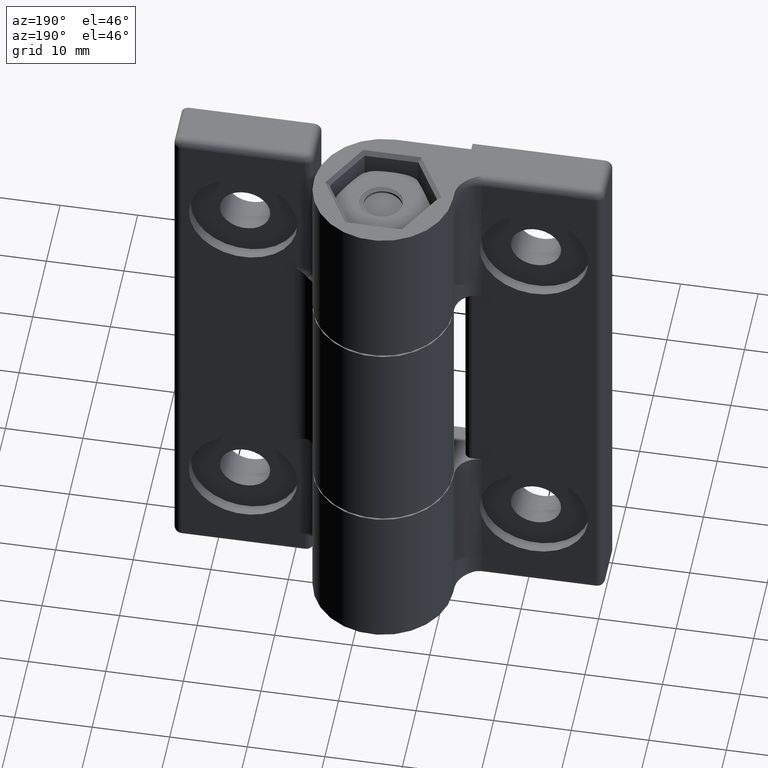
[diagram: clean part render]
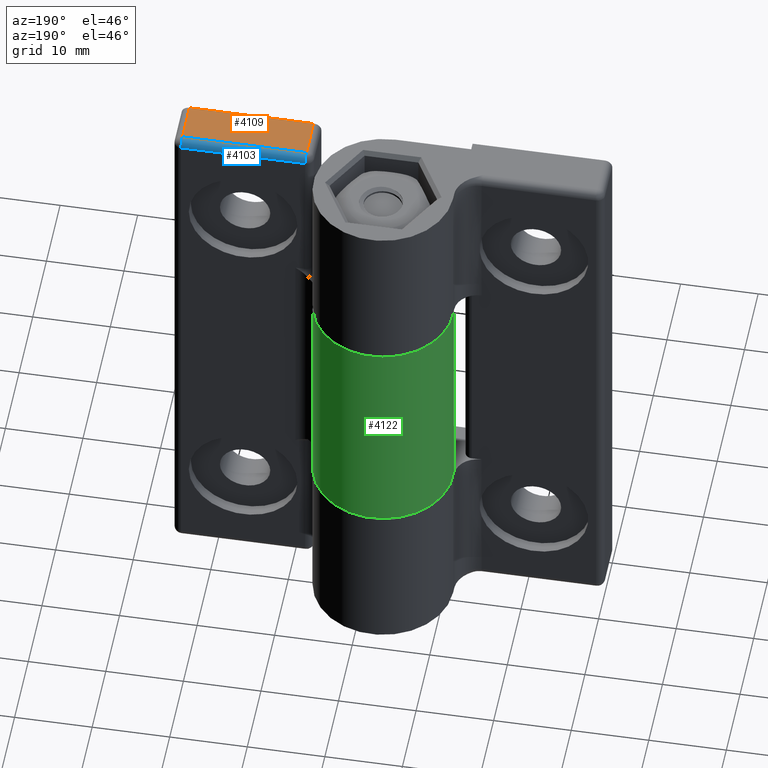
[diagram: same view with three faces highlighted in distinct colors, each labeled with its STEP entity id]
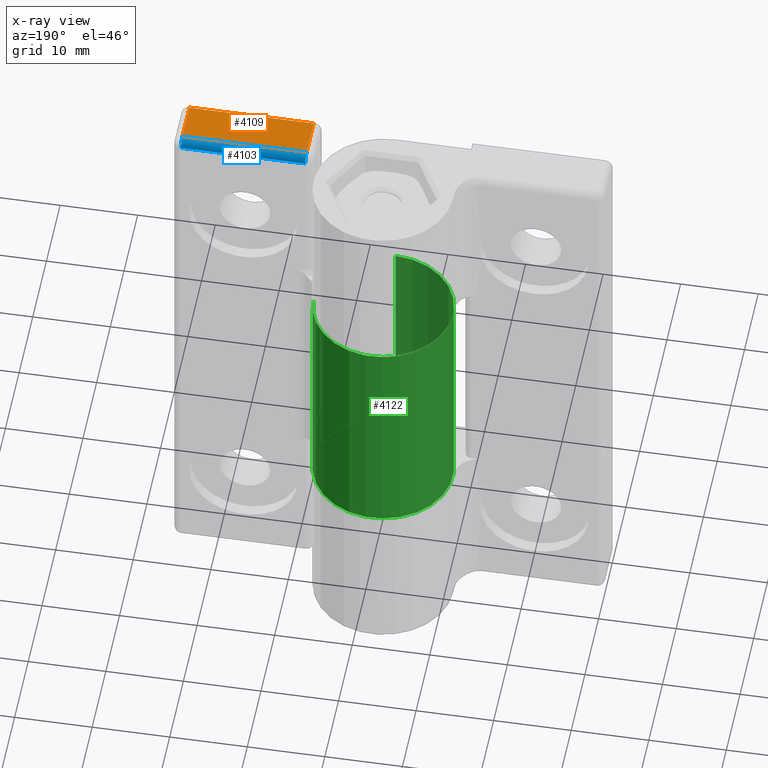
[diagram: x-ray of the same camera — body ghosted, the three highlighted faces saturated]
A machine part, auxiliary view with three faces highlighted in distinct colors.
The next image is the same camera in x-ray (body ghosted, the three faces saturated) — at least one of them is partly hidden behind the body in this view.
Their STEP definitions:

[orange] entity #4109 — the highlighted planar face has unit normal (0, -0, 1).
#511=PLANE('',#4366);
#675=FACE_OUTER_BOUND('',#880,.T.);
#880=EDGE_LOOP('',(#3721,#3722,#3723,#3724));
#1120=LINE('',#37165,#1385);
#1132=LINE('',#37231,#1397);
#1135=LINE('',#37238,#1400);
#1140=LINE('',#37268,#1405);
#1385=VECTOR('',#4967,5.2);
#1397=VECTOR('',#5027,16.);
#1400=VECTOR('',#5034,5.2);
#1405=VECTOR('',#5055,16.);
#1969=VERTEX_POINT('',#37158);
#1971=VERTEX_POINT('',#37163);
#1983=VERTEX_POINT('',#37206);
#1990=VERTEX_POINT('',#37234);
#2548=EDGE_CURVE('',#1971,#1969,#1120,.T.);
#2576=EDGE_CURVE('',#1969,#1983,#1132,.T.);
#2580=EDGE_CURVE('',#1983,#1990,#1135,.T.);
#2590=EDGE_CURVE('',#1971,#1990,#1140,.T.);
#3721=ORIENTED_EDGE('',*,*,#2580,.F.);
#3722=ORIENTED_EDGE('',*,*,#2576,.F.);
#3723=ORIENTED_EDGE('',*,*,#2548,.F.);
#3724=ORIENTED_EDGE('',*,*,#2590,.T.);
#4109=ADVANCED_FACE('',(#675),#511,.T.);
#4366=AXIS2_PLACEMENT_3D('',#37267,#5053,#5054);
#4967=DIRECTION('',(0.,0.,1.));
#5027=DIRECTION('',(-1.,0.,0.));
#5034=DIRECTION('',(0.,0.,-1.));
#5053=DIRECTION('center_axis',(0.,1.,0.));
#5054=DIRECTION('ref_axis',(1.,0.,0.));
#5055=DIRECTION('',(-1.,0.,6.84775091337684E-33));
#37158=CARTESIAN_POINT('',(68.2766159227696,36.,5.2));
#37163=CARTESIAN_POINT('',(68.2766159227696,36.,-1.16411765527406E-31));
#37165=CARTESIAN_POINT('',(68.2766159227696,36.,5.25));
#37206=CARTESIAN_POINT('',(52.2766159227696,36.,5.2));
#37231=CARTESIAN_POINT('',(60.4641159227696,36.,5.2));
#37234=CARTESIAN_POINT('',(52.2766159227696,36.,-6.84775091337681E-33));
#37238=CARTESIAN_POINT('',(52.2766159227696,36.,4.75));
#37267=CARTESIAN_POINT('Origin',(69.6516159227696,36.,9.5));
#37268=CARTESIAN_POINT('',(51.2766159227696,36.,0.));

[blue] entity #4103 — the highlighted cylindrical surface (edge-blend (fillet) strip) has radius 1 mm, axis along (-1, -0, 0).
#669=FACE_OUTER_BOUND('',#874,.T.);
#874=EDGE_LOOP('',(#3696,#3697,#3698,#3699));
#1132=LINE('',#37231,#1397);
#1133=LINE('',#37232,#1398);
#1397=VECTOR('',#5027,16.);
#1398=VECTOR('',#5028,16.);
#1530=CIRCLE('',#4330,1.);
#1541=CIRCLE('',#4347,1.);
#1968=VERTEX_POINT('',#37156);
#1969=VERTEX_POINT('',#37158);
#1983=VERTEX_POINT('',#37206);
#1984=VERTEX_POINT('',#37208);
#2546=EDGE_CURVE('',#1968,#1969,#1530,.F.);
#2565=EDGE_CURVE('',#1983,#1984,#1541,.F.);
#2576=EDGE_CURVE('',#1969,#1983,#1132,.T.);
#2577=EDGE_CURVE('',#1984,#1968,#1133,.T.);
#3696=ORIENTED_EDGE('',*,*,#2546,.T.);
#3697=ORIENTED_EDGE('',*,*,#2576,.T.);
#3698=ORIENTED_EDGE('',*,*,#2565,.T.);
#3699=ORIENTED_EDGE('',*,*,#2577,.T.);
#3960=CYLINDRICAL_SURFACE('',#4356,1.);
#4103=ADVANCED_FACE('',(#669),#3960,.T.);
#4330=AXIS2_PLACEMENT_3D('',#37160,#4961,#4962);
#4347=AXIS2_PLACEMENT_3D('',#37210,#5001,#5002);
#4356=AXIS2_PLACEMENT_3D('',#37230,#5025,#5026);
#4961=DIRECTION('center_axis',(1.,-8.88178419700124E-15,0.));
#4962=DIRECTION('ref_axis',(0.,0.,1.));
#5001=DIRECTION('center_axis',(-1.,0.,0.));
#5002=DIRECTION('ref_axis',(0.,1.,0.));
#5025=DIRECTION('center_axis',(1.,0.,0.));
#5026=DIRECTION('ref_axis',(0.,0.707106781186547,0.707106781186548));
#5027=DIRECTION('',(-1.,0.,0.));
#5028=DIRECTION('',(1.,0.,0.));
#37156=CARTESIAN_POINT('',(68.2766159227696,35.,6.2));
#37158=CARTESIAN_POINT('',(68.2766159227696,36.,5.2));
#37160=CARTESIAN_POINT('Origin',(68.2766159227696,35.,5.2));
#37206=CARTESIAN_POINT('',(52.2766159227696,36.,5.2));
#37208=CARTESIAN_POINT('',(52.2766159227696,35.,6.2));
#37210=CARTESIAN_POINT('Origin',(52.2766159227696,35.,5.2));
#37230=CARTESIAN_POINT('Origin',(60.4641159227696,35.,5.2));
#37231=CARTESIAN_POINT('',(60.4641159227696,36.,5.2));
#37232=CARTESIAN_POINT('',(60.4641159227696,35.,6.2));

[green] entity #4122 — the highlighted cylindrical surface (partial cylindrical patch) has radius 9 mm, axis along (0, -0, 1).
#688=FACE_OUTER_BOUND('',#906,.T.);
#906=EDGE_LOOP('',(#3815,#3816,#3817,#3818));
#1166=LINE('',#37364,#1431);
#1170=LINE('',#37376,#1435);
#1431=VECTOR('',#5127,29.5);
#1435=VECTOR('',#5141,29.5);
#1557=CIRCLE('',#4377,9.);
#1564=CIRCLE('',#4391,9.);
#2022=VERTEX_POINT('',#37329);
#2023=VERTEX_POINT('',#37331);
#2031=VERTEX_POINT('',#37362);
#2033=VERTEX_POINT('',#37368);
#2619=EDGE_CURVE('',#2023,#2022,#1557,.T.);
#2632=EDGE_CURVE('',#2022,#2031,#1166,.T.);
#2635=EDGE_CURVE('',#2031,#2033,#1564,.T.);
#2638=EDGE_CURVE('',#2033,#2023,#1170,.T.);
#3815=ORIENTED_EDGE('',*,*,#2635,.T.);
#3816=ORIENTED_EDGE('',*,*,#2638,.T.);
#3817=ORIENTED_EDGE('',*,*,#2619,.T.);
#3818=ORIENTED_EDGE('',*,*,#2632,.T.);
#3968=CYLINDRICAL_SURFACE('',#4395,9.);
#4122=ADVANCED_FACE('',(#688),#3968,.T.);
#4377=AXIS2_PLACEMENT_3D('',#37332,#5096,#5097);
#4391=AXIS2_PLACEMENT_3D('',#37370,#5132,#5133);
#4395=AXIS2_PLACEMENT_3D('',#37377,#5142,#5143);
#5096=DIRECTION('center_axis',(0.,-1.,0.));
#5097=DIRECTION('ref_axis',(1.,0.,0.));
#5127=DIRECTION('',(0.,-1.,0.));
#5132=DIRECTION('center_axis',(0.,1.,0.));
#5133=DIRECTION('ref_axis',(1.,0.,0.));
#5141=DIRECTION('',(0.,1.,0.));
#5142=DIRECTION('center_axis',(0.,1.,0.));
#5143=DIRECTION('ref_axis',(1.,0.,0.));
#37329=CARTESIAN_POINT('',(70.0266159227696,14.75,10.));
#37331=CARTESIAN_POINT('',(79.0266159227696,14.75,1.));
#37332=CARTESIAN_POINT('Origin',(79.0266159227696,14.75,10.));
#37362=CARTESIAN_POINT('',(70.0266159227696,-14.75,10.));
#37364=CARTESIAN_POINT('',(70.0266159227696,0.,10.));
#37368=CARTESIAN_POINT('',(79.0266159227696,-14.75,1.));
#37370=CARTESIAN_POINT('Origin',(79.0266159227696,-14.75,10.));
#37376=CARTESIAN_POINT('',(79.0266159227696,0.,1.));
#37377=CARTESIAN_POINT('Origin',(79.0266159227696,0.,10.));